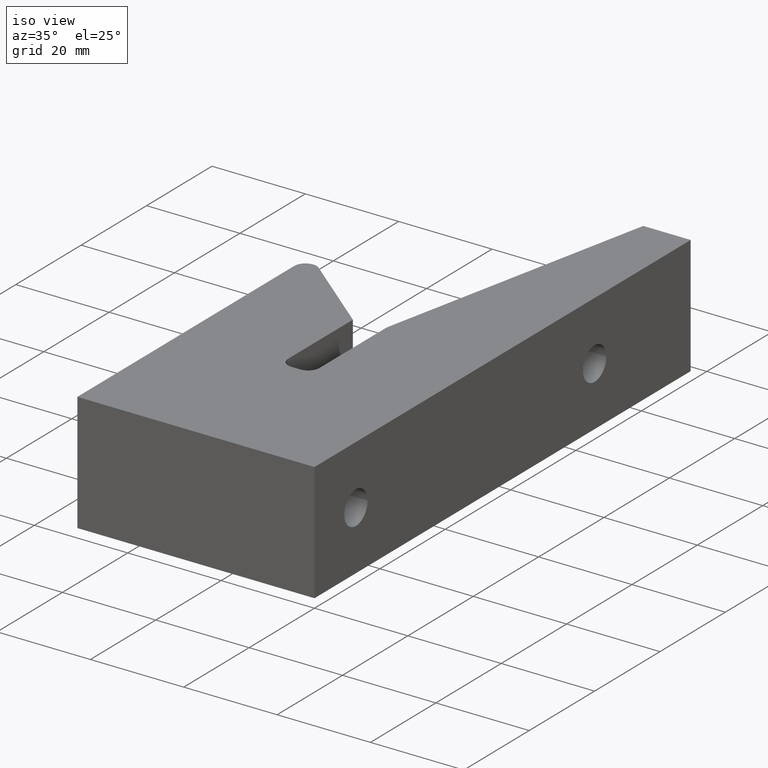
[diagram: clean part render]
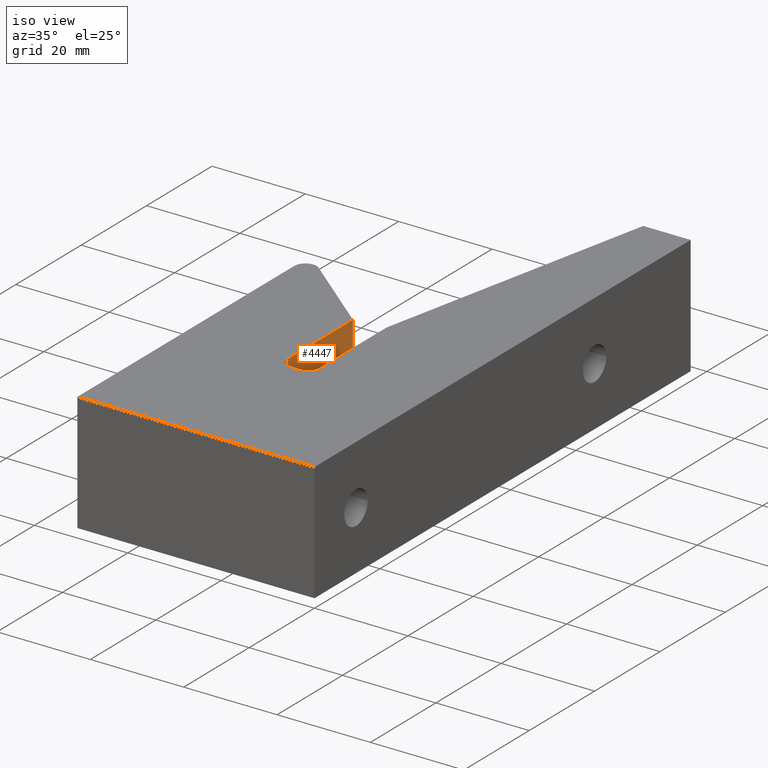
[diagram: same view with one face highlighted and labeled with its STEP entity id]
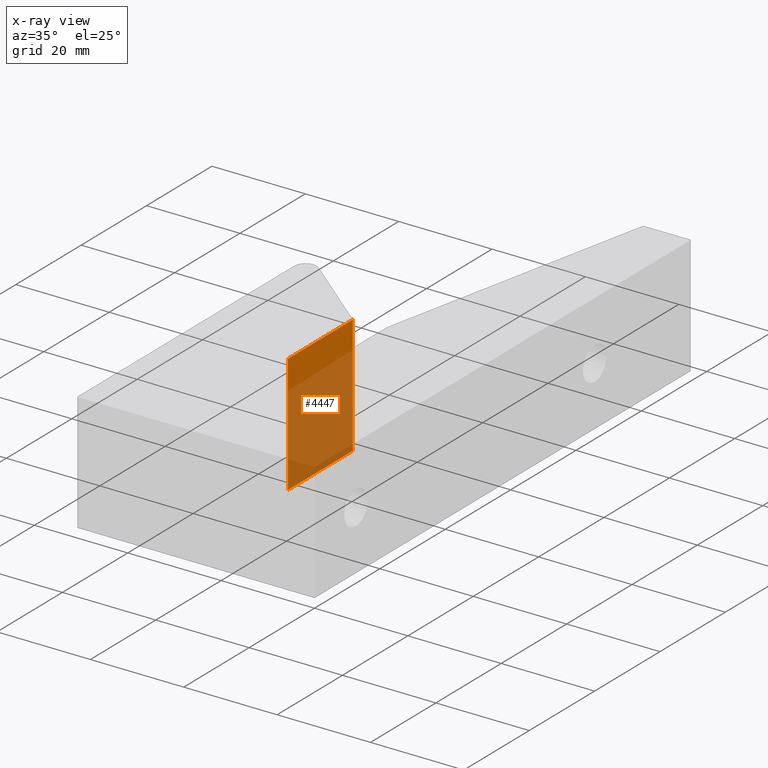
[diagram: x-ray of the same camera — body ghosted, the highlighted face saturated]
A machine part, iso view. The second image highlights one B-rep face of the part: STEP entity #4447.
The next image is the same camera in x-ray: the body ghosted, the highlighted face saturated — about 76% of this face is hidden behind the body in this view.
In plain terms, the highlighted planar face has unit normal (-1, 0, 0).
Its self-contained STEP definition (entity closure, byte-faithful):
#371 = CARTESIAN_POINT ( 'NONE',  ( -1.163999999999999700, 1.343749999999999800, -0.5000000000000000000 ) ) ;
#580 = EDGE_CURVE ( 'NONE', #5795, #5824, #6637, .T. ) ;
#586 = EDGE_CURVE ( 'NONE', #6182, #5818, #6643, .T. ) ;
#865 = LINE ( 'NONE', #1241, #866 ) ;
#866 = VECTOR ( 'NONE', #1255, 39.37007874015748100 ) ;
#1241 = CARTESIAN_POINT ( 'NONE',  ( -1.163999999999999700, 1.343749999999999800, -0.5000000000000000000 ) ) ;
#1255 = DIRECTION ( 'NONE',  ( 0.0000000000000000000, 0.0000000000000000000, -1.000000000000000000 ) ) ;
#2053 = DIRECTION ( 'NONE',  ( 0.0000000000000000000, 1.000000000000000000, 0.0000000000000000000 ) ) ;
#2078 = CARTESIAN_POINT ( 'NONE',  ( -1.163999999999999700, 1.249999999999999800, -0.5000000000000000000 ) ) ;
#2094 = DIRECTION ( 'NONE',  ( 0.0000000000000000000, 1.000000000000000000, 0.0000000000000000000 ) ) ;
#2095 = CARTESIAN_POINT ( 'NONE',  ( -1.163999999999999700, 1.249999999999999800, 0.5000000000000000000 ) ) ;
#2365 = AXIS2_PLACEMENT_3D ( 'NONE', #4952, #4947, #4946 ) ;
#3182 = VECTOR ( 'NONE', #8188, 39.37007874015748100 ) ;
#3185 = LINE ( 'NONE', #8187, #3182 ) ;
#3888 = EDGE_CURVE ( 'NONE', #5795, #6182, #865, .T. ) ;
#4447 = ADVANCED_FACE ( 'NONE', ( #4600 ), #4950, .F. ) ;
#4600 = FACE_OUTER_BOUND ( 'NONE', #6226, .T. ) ;
#4732 = ORIENTED_EDGE ( 'NONE', *, *, #5226, .F. ) ;
#4733 = ORIENTED_EDGE ( 'NONE', *, *, #586, .T. ) ;
#4734 = ORIENTED_EDGE ( 'NONE', *, *, #3888, .T. ) ;
#4735 = ORIENTED_EDGE ( 'NONE', *, *, #580, .F. ) ;
#4946 = DIRECTION ( 'NONE',  ( 0.0000000000000000000, 0.0000000000000000000, 1.000000000000000000 ) ) ;
#4947 = DIRECTION ( 'NONE',  ( -1.000000000000000000, 0.0000000000000000000, 0.0000000000000000000 ) ) ;
#4950 = PLANE ( 'NONE',  #2365 ) ;
#4952 = CARTESIAN_POINT ( 'NONE',  ( -1.163999999999999700, 1.249999999999999800, 0.5000000000000000000 ) ) ;
#5226 = EDGE_CURVE ( 'NONE', #5824, #5818, #3185, .T. ) ;
#5795 = VERTEX_POINT ( 'NONE', #8327 ) ;
#5818 = VERTEX_POINT ( 'NONE', #8341 ) ;
#5824 = VERTEX_POINT ( 'NONE', #8346 ) ;
#6182 = VERTEX_POINT ( 'NONE', #371 ) ;
#6226 = EDGE_LOOP ( 'NONE', ( #4735, #4734, #4733, #4732 ) ) ;
#6621 = VECTOR ( 'NONE', #2094, 39.37007874015748100 ) ;
#6637 = LINE ( 'NONE', #2095, #6621 ) ;
#6639 = VECTOR ( 'NONE', #2053, 39.37007874015748100 ) ;
#6643 = LINE ( 'NONE', #2078, #6639 ) ;
#8187 = CARTESIAN_POINT ( 'NONE',  ( -1.163999999999999700, 2.125000000000000000, 0.5000000000000000000 ) ) ;
#8188 = DIRECTION ( 'NONE',  ( -0.0000000000000000000, -0.0000000000000000000, -1.000000000000000000 ) ) ;
#8327 = CARTESIAN_POINT ( 'NONE',  ( -1.163999999999999700, 1.343749999999999800, 0.5000000000000000000 ) ) ;
#8341 = CARTESIAN_POINT ( 'NONE',  ( -1.163999999999999700, 2.125000000000000000, -0.5000000000000000000 ) ) ;
#8346 = CARTESIAN_POINT ( 'NONE',  ( -1.163999999999999700, 2.125000000000000000, 0.5000000000000000000 ) ) ;